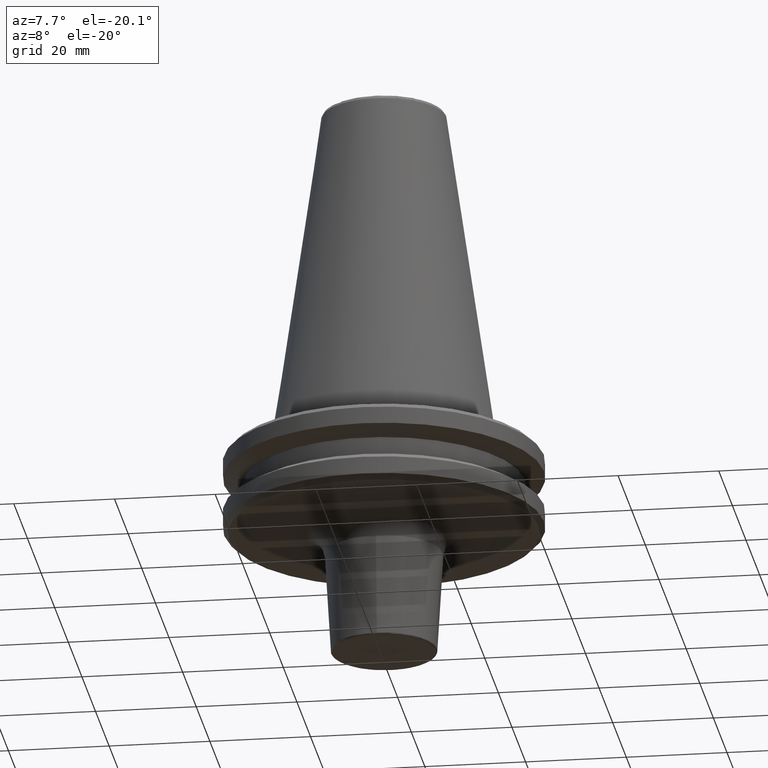
[diagram: clean part render]
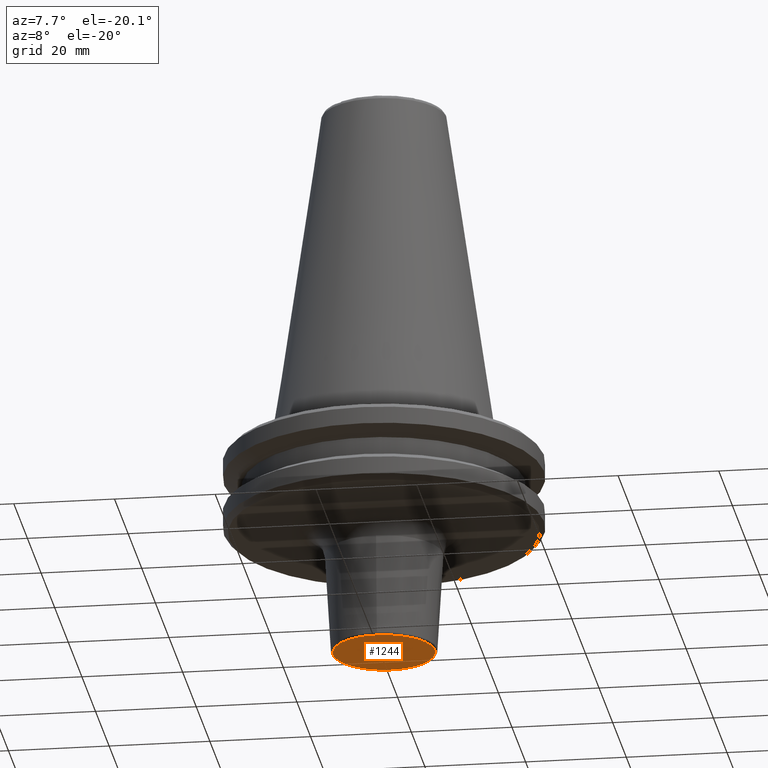
[diagram: same view with one face highlighted and labeled with its STEP entity id]
A machine part, auxiliary view. The second image highlights one B-rep face of the part: STEP entity #1244.
In plain terms, the highlighted planar face has unit normal (0, 0, -1).
Its self-contained STEP definition (entity closure, byte-faithful):
#127 = CARTESIAN_POINT ( 'NONE',  ( -10.12328064683621800, 1.249523911052976600E-015, -44.10000000000001600 ) ) ;
#131 = CARTESIAN_POINT ( 'NONE',  ( -10.12328064683621600, 20.24656129367243200, -44.10000000000001600 ) ) ;
#135 = CARTESIAN_POINT ( 'NONE',  ( 10.12328064683621800, 20.24656129367243200, -44.10000000000001600 ) ) ;
#158 = CARTESIAN_POINT ( 'NONE',  ( 10.12328064683621800, 0.0000000000000000000, -44.10000000000001600 ) ) ;
#356 = ORIENTED_EDGE ( 'NONE', *, *, #546, .F. ) ;
#378 = CARTESIAN_POINT ( 'NONE',  ( -10.12328064683621800, 1.249523911052976600E-015, -44.10000000000001600 ) ) ;
#444 = EDGE_LOOP ( 'NONE', ( #1479, #356 ) ) ;
#545 = CARTESIAN_POINT ( 'NONE',  ( 10.12328064683621800, 0.0000000000000000000, -44.10000000000001600 ) ) ;
#546 = EDGE_CURVE ( 'NONE', #1328, #934, #1391, .T. ) ;
#783 = CARTESIAN_POINT ( 'NONE',  ( -10.12328064683621800, 1.249523911052976600E-015, -44.10000000000001600 ) ) ;
#797 = CARTESIAN_POINT ( 'NONE',  ( -10.12328064683622000, -20.24656129367243200, -44.10000000000001600 ) ) ;
#803 = CARTESIAN_POINT ( 'NONE',  ( 10.12328064683621800, 0.0000000000000000000, -44.10000000000001600 ) ) ;
#807 = CARTESIAN_POINT ( 'NONE',  ( 10.12328064683621800, -20.24656129367243200, -44.10000000000001600 ) ) ;
#934 = VERTEX_POINT ( 'NONE', #545 ) ;
#1000 = DIRECTION ( 'NONE',  ( -1.000000000000000000, 0.0000000000000000000, -0.0000000000000000000 ) ) ;
#1009 = DIRECTION ( 'NONE',  ( 0.0000000000000000000, 0.0000000000000000000, -1.000000000000000000 ) ) ;
#1021 = PLANE ( 'NONE',  #1418 ) ;
#1052 = EDGE_CURVE ( 'NONE', #934, #1328, #1193, .T. ) ;
#1093 = FACE_OUTER_BOUND ( 'NONE', #444, .T. ) ;
#1159 = CARTESIAN_POINT ( 'NONE',  ( 0.0000000000000000000, 0.0000000000000000000, -44.10000000000001600 ) ) ;
#1193 =( BOUNDED_CURVE ( )  B_SPLINE_CURVE ( 3, ( #158, #135, #131, #127 ),
 .UNSPECIFIED., .F., .F. ) 
 B_SPLINE_CURVE_WITH_KNOTS ( ( 4, 4 ),
 ( 0.0000000000000000000, 1.000000000000000000 ),
 .UNSPECIFIED. ) 
 CURVE ( )  GEOMETRIC_REPRESENTATION_ITEM ( )  RATIONAL_B_SPLINE_CURVE ( ( 1.000000000000000000, 0.3333333333333333700, 0.3333333333333333700, 1.000000000000000000 ) ) 
 REPRESENTATION_ITEM ( '' )  );
#1244 = ADVANCED_FACE ( 'NONE', ( #1093 ), #1021, .T. ) ;
#1328 = VERTEX_POINT ( 'NONE', #378 ) ;
#1391 =( BOUNDED_CURVE ( )  B_SPLINE_CURVE ( 3, ( #783, #797, #807, #803 ),
 .UNSPECIFIED., .F., .F. ) 
 B_SPLINE_CURVE_WITH_KNOTS ( ( 4, 4 ),
 ( 0.0000000000000000000, 1.000000000000000000 ),
 .UNSPECIFIED. ) 
 CURVE ( )  GEOMETRIC_REPRESENTATION_ITEM ( )  RATIONAL_B_SPLINE_CURVE ( ( 1.000000000000000000, 0.3333333333333333700, 0.3333333333333333700, 1.000000000000000000 ) ) 
 REPRESENTATION_ITEM ( '' )  );
#1418 = AXIS2_PLACEMENT_3D ( 'NONE', #1159, #1009, #1000 ) ;
#1479 = ORIENTED_EDGE ( 'NONE', *, *, #1052, .F. ) ;